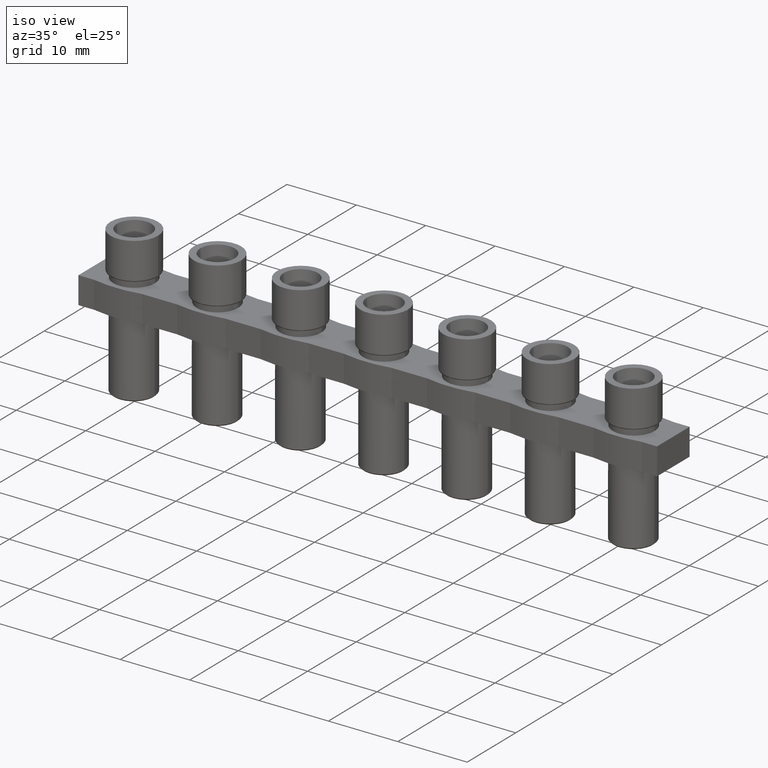
[diagram: clean part render]
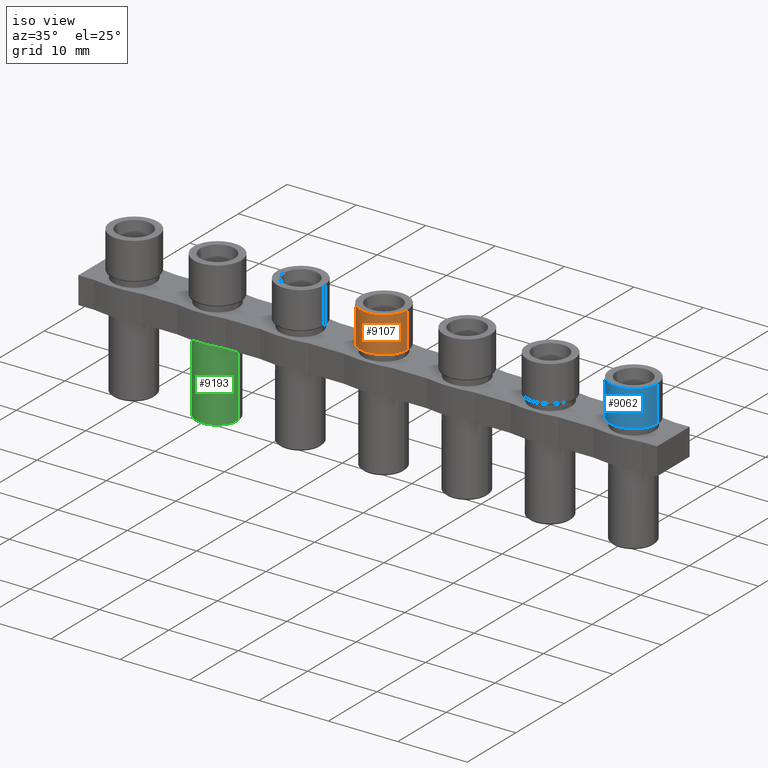
[diagram: same view with three faces highlighted in distinct colors, each labeled with its STEP entity id]
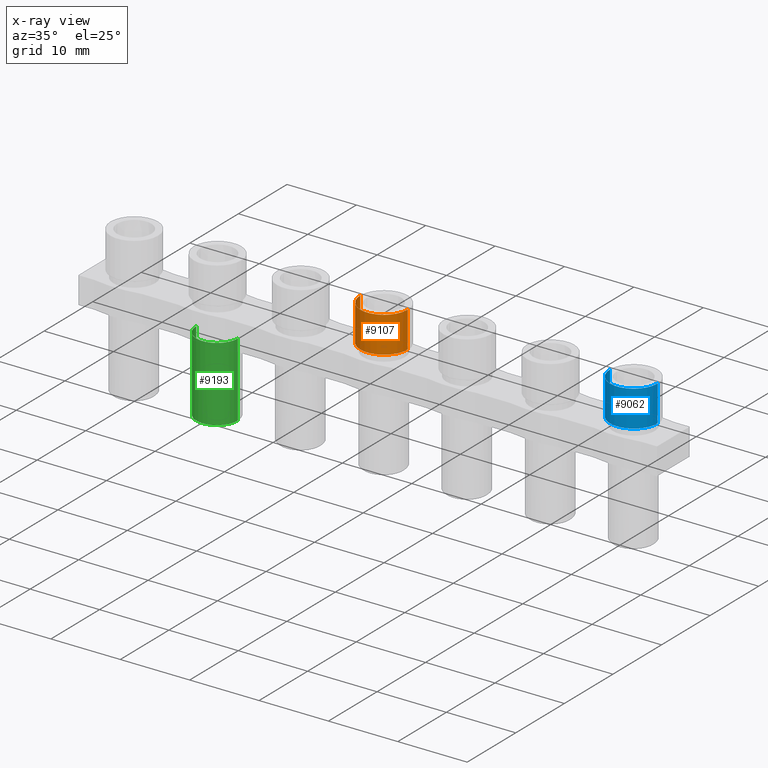
[diagram: x-ray of the same camera — body ghosted, the three highlighted faces saturated]
A machine part, iso view with three faces highlighted in distinct colors.
The next image is the same camera in x-ray (body ghosted, the three faces saturated) — at least one of them is partly hidden behind the body in this view.
Their STEP definitions:

[orange] entity #9107 — the highlighted cylindrical surface (edge-blend (fillet) strip) has radius 3.425 mm, axis along (-0, -0, -1).
#1437 = EDGE_LOOP ( 'NONE', ( #4320, #4340, #4324, #4323 ) ) ;
#2931 = DIRECTION ( 'NONE',  ( -0.0000000000000000000, -0.0000000000000000000, -1.000000000000000000 ) ) ;
#2956 = CARTESIAN_POINT ( 'NONE',  ( -24.00000000000000000, -4.578582932987532800E-015, 5.400000000000000400 ) ) ;
#2959 = DIRECTION ( 'NONE',  ( -1.000000000000000000, 0.0000000000000000000, 0.0000000000000000000 ) ) ;
#3479 = VECTOR ( 'NONE', #7275, 1000.000000000000000 ) ;
#3499 = VECTOR ( 'NONE', #7392, 1000.000000000000000 ) ;
#3937 = AXIS2_PLACEMENT_3D ( 'NONE', #2956, #2931, #2959 ) ;
#3939 = CIRCLE ( 'NONE', #3937, 3.424999999999997600 ) ;
#4320 = ORIENTED_EDGE ( 'NONE', *, *, #8378, .F. ) ;
#4323 = ORIENTED_EDGE ( 'NONE', *, *, #9338, .F. ) ;
#4324 = ORIENTED_EDGE ( 'NONE', *, *, #8408, .T. ) ;
#4340 = ORIENTED_EDGE ( 'NONE', *, *, #8724, .T. ) ;
#5084 = CARTESIAN_POINT ( 'NONE',  ( -20.57500000000000300, -4.159141404279564600E-015, 0.1999999999999996500 ) ) ;
#5116 = CARTESIAN_POINT ( 'NONE',  ( -27.42499999999999700, -4.578582932987532800E-015, 0.1999999999999996500 ) ) ;
#5258 = CARTESIAN_POINT ( 'NONE',  ( -20.57500000000000300, -4.159141404279564600E-015, 5.400000000000000400 ) ) ;
#5293 = CARTESIAN_POINT ( 'NONE',  ( -27.42499999999999700, -4.578582932987532800E-015, 5.400000000000000400 ) ) ;
#6802 = VERTEX_POINT ( 'NONE', #5084 ) ;
#6822 = VERTEX_POINT ( 'NONE', #5116 ) ;
#6982 = VERTEX_POINT ( 'NONE', #5258 ) ;
#7001 = VERTEX_POINT ( 'NONE', #5293 ) ;
#7263 = CARTESIAN_POINT ( 'NONE',  ( -20.57500000000000300, -4.159141404279564600E-015, 5.400000000000000400 ) ) ;
#7272 = LINE ( 'NONE', #7263, #3479 ) ;
#7275 = DIRECTION ( 'NONE',  ( -0.0000000000000000000, -0.0000000000000000000, -1.000000000000000000 ) ) ;
#7392 = DIRECTION ( 'NONE',  ( -0.0000000000000000000, -0.0000000000000000000, -1.000000000000000000 ) ) ;
#7405 = LINE ( 'NONE', #7417, #3499 ) ;
#7417 = CARTESIAN_POINT ( 'NONE',  ( -27.42499999999999700, -4.578582932987532800E-015, 5.400000000000000400 ) ) ;
#7571 = AXIS2_PLACEMENT_3D ( 'NONE', #10221, #10226, #10228 ) ;
#7962 = AXIS2_PLACEMENT_3D ( 'NONE', #9557, #9539, #9550 ) ;
#7975 = CIRCLE ( 'NONE', #7962, 3.424999999999997600 ) ;
#8378 = EDGE_CURVE ( 'NONE', #6982, #6802, #7272, .T. ) ;
#8408 = EDGE_CURVE ( 'NONE', #7001, #6822, #7405, .T. ) ;
#8724 = EDGE_CURVE ( 'NONE', #6982, #7001, #3939, .T. ) ;
#9107 = ADVANCED_FACE ( 'NONE', ( #10227 ), #10220, .T. ) ;
#9338 = EDGE_CURVE ( 'NONE', #6802, #6822, #7975, .T. ) ;
#9539 = DIRECTION ( 'NONE',  ( -0.0000000000000000000, -0.0000000000000000000, -1.000000000000000000 ) ) ;
#9550 = DIRECTION ( 'NONE',  ( 1.000000000000000000, 0.0000000000000000000, 0.0000000000000000000 ) ) ;
#9557 = CARTESIAN_POINT ( 'NONE',  ( -24.00000000000000000, -4.578582932987532800E-015, 0.1999999999999996500 ) ) ;
#10220 = CYLINDRICAL_SURFACE ( 'NONE', #7571, 3.424999999999997600 ) ;
#10221 = CARTESIAN_POINT ( 'NONE',  ( -24.00000000000000000, -4.578582932987532800E-015, 5.400000000000000400 ) ) ;
#10226 = DIRECTION ( 'NONE',  ( -0.0000000000000000000, -0.0000000000000000000, -1.000000000000000000 ) ) ;
#10227 = FACE_OUTER_BOUND ( 'NONE', #1437, .T. ) ;
#10228 = DIRECTION ( 'NONE',  ( -1.000000000000000000, 0.0000000000000000000, 0.0000000000000000000 ) ) ;

[blue] entity #9062 — the highlighted cylindrical surface (edge-blend (fillet) strip) has radius 3.425 mm, axis along (-0, -0, -1).
#1364 = EDGE_LOOP ( 'NONE', ( #2146, #2196, #2173, #2191 ) ) ;
#2146 = ORIENTED_EDGE ( 'NONE', *, *, #8571, .F. ) ;
#2173 = ORIENTED_EDGE ( 'NONE', *, *, #8504, .T. ) ;
#2191 = ORIENTED_EDGE ( 'NONE', *, *, #9345, .F. ) ;
#2196 = ORIENTED_EDGE ( 'NONE', *, *, #8689, .T. ) ;
#2288 = VERTEX_POINT ( 'NONE', #4982 ) ;
#2394 = CARTESIAN_POINT ( 'NONE',  ( 15.42499999999999700, 1.885405029533116300E-015, 5.400000000000000400 ) ) ;
#2398 = DIRECTION ( 'NONE',  ( -0.0000000000000000000, -0.0000000000000000000, -1.000000000000000000 ) ) ;
#2409 = LINE ( 'NONE', #2394, #3745 ) ;
#2801 = CARTESIAN_POINT ( 'NONE',  ( 12.00000000000000000, 1.465963500825148300E-015, 5.400000000000000400 ) ) ;
#2824 = DIRECTION ( 'NONE',  ( -1.000000000000000000, 0.0000000000000000000, 0.0000000000000000000 ) ) ;
#2829 = DIRECTION ( 'NONE',  ( -0.0000000000000000000, -0.0000000000000000000, -1.000000000000000000 ) ) ;
#3650 = VECTOR ( 'NONE', #8010, 1000.000000000000000 ) ;
#3745 = VECTOR ( 'NONE', #2398, 1000.000000000000000 ) ;
#3903 = CIRCLE ( 'NONE', #3921, 3.424999999999997600 ) ;
#3921 = AXIS2_PLACEMENT_3D ( 'NONE', #2801, #2829, #2824 ) ;
#4982 = CARTESIAN_POINT ( 'NONE',  ( 15.42499999999999700, 1.885405029533116300E-015, 5.400000000000000400 ) ) ;
#5180 = CARTESIAN_POINT ( 'NONE',  ( 15.42499999999999900, 1.885405029533116300E-015, 0.1999999999999996500 ) ) ;
#5191 = CARTESIAN_POINT ( 'NONE',  ( 8.575000000000001100, 1.465963500825148300E-015, 0.1999999999999996500 ) ) ;
#5255 = CARTESIAN_POINT ( 'NONE',  ( 8.575000000000002800, 1.465963500825148300E-015, 5.400000000000000400 ) ) ;
#6851 = VERTEX_POINT ( 'NONE', #5180 ) ;
#6878 = VERTEX_POINT ( 'NONE', #5191 ) ;
#6983 = VERTEX_POINT ( 'NONE', #5255 ) ;
#7492 = AXIS2_PLACEMENT_3D ( 'NONE', #10053, #10038, #10017 ) ;
#7914 = CIRCLE ( 'NONE', #7937, 3.424999999999999400 ) ;
#7937 = AXIS2_PLACEMENT_3D ( 'NONE', #9573, #9576, #9574 ) ;
#8004 = LINE ( 'NONE', #8041, #3650 ) ;
#8010 = DIRECTION ( 'NONE',  ( -0.0000000000000000000, -0.0000000000000000000, -1.000000000000000000 ) ) ;
#8041 = CARTESIAN_POINT ( 'NONE',  ( 8.575000000000002800, 1.465963500825148300E-015, 5.400000000000000400 ) ) ;
#8504 = EDGE_CURVE ( 'NONE', #6983, #6878, #8004, .T. ) ;
#8571 = EDGE_CURVE ( 'NONE', #2288, #6851, #2409, .T. ) ;
#8689 = EDGE_CURVE ( 'NONE', #2288, #6983, #3903, .T. ) ;
#9062 = ADVANCED_FACE ( 'NONE', ( #10057 ), #10050, .T. ) ;
#9345 = EDGE_CURVE ( 'NONE', #6851, #6878, #7914, .T. ) ;
#9573 = CARTESIAN_POINT ( 'NONE',  ( 12.00000000000000000, 1.465963500825148300E-015, 0.1999999999999996500 ) ) ;
#9574 = DIRECTION ( 'NONE',  ( 1.000000000000000000, 0.0000000000000000000, 0.0000000000000000000 ) ) ;
#9576 = DIRECTION ( 'NONE',  ( -0.0000000000000000000, -0.0000000000000000000, -1.000000000000000000 ) ) ;
#10017 = DIRECTION ( 'NONE',  ( -1.000000000000000000, 0.0000000000000000000, 0.0000000000000000000 ) ) ;
#10038 = DIRECTION ( 'NONE',  ( -0.0000000000000000000, -0.0000000000000000000, -1.000000000000000000 ) ) ;
#10050 = CYLINDRICAL_SURFACE ( 'NONE', #7492, 3.424999999999997600 ) ;
#10053 = CARTESIAN_POINT ( 'NONE',  ( 12.00000000000000000, 1.465963500825148300E-015, 5.400000000000000400 ) ) ;
#10057 = FACE_OUTER_BOUND ( 'NONE', #1364, .T. ) ;

[green] entity #9193 — the highlighted cylindrical surface (edge-blend (fillet) strip) has radius 3 mm, axis along (-0, -0, -1).
#759 = CARTESIAN_POINT ( 'NONE',  ( -48.06167760658912900, -9.157165865975065600E-015, -4.900000000077398000 ) ) ;
#760 = DIRECTION ( 'NONE',  ( -0.0000000000000000000, -0.0000000000000000000, 1.000000000000000000 ) ) ;
#762 = DIRECTION ( 'NONE',  ( -1.000000000000000000, 0.0000000000000000000, 0.0000000000000000000 ) ) ;
#1501 = EDGE_LOOP ( 'NONE', ( #4587, #4591, #4623, #4608, #4634 ) ) ;
#3180 = DIRECTION ( 'NONE',  ( 0.0000000000000000000, 0.0000000000000000000, 1.000000000000000000 ) ) ;
#3183 = DIRECTION ( 'NONE',  ( -1.000000000000000000, 0.0000000000000000000, 0.0000000000000000000 ) ) ;
#3195 = CARTESIAN_POINT ( 'NONE',  ( -48.06167760658912900, -9.157165865975065600E-015, -15.60000000008048600 ) ) ;
#3295 = VECTOR ( 'NONE', #5323, 1000.000000000000000 ) ;
#3312 = VECTOR ( 'NONE', #5362, 1000.000000000000000 ) ;
#3382 = AXIS2_PLACEMENT_3D ( 'NONE', #7061, #7084, #7095 ) ;
#3389 = CIRCLE ( 'NONE', #3382, 2.999999999999995600 ) ;
#3982 = CIRCLE ( 'NONE', #4005, 2.999999999999995600 ) ;
#4005 = AXIS2_PLACEMENT_3D ( 'NONE', #3195, #3180, #3183 ) ;
#4154 = CIRCLE ( 'NONE', #4155, 2.999999999992141000 ) ;
#4155 = AXIS2_PLACEMENT_3D ( 'NONE', #759, #760, #762 ) ;
#4587 = ORIENTED_EDGE ( 'NONE', *, *, #8253, .F. ) ;
#4591 = ORIENTED_EDGE ( 'NONE', *, *, #8936, .F. ) ;
#4608 = ORIENTED_EDGE ( 'NONE', *, *, #8784, .T. ) ;
#4623 = ORIENTED_EDGE ( 'NONE', *, *, #8267, .T. ) ;
#4634 = ORIENTED_EDGE ( 'NONE', *, *, #8315, .T. ) ;
#5149 = CARTESIAN_POINT ( 'NONE',  ( -45.06167760658913600, -8.789771826230860200E-015, -15.60000000008048600 ) ) ;
#5150 = CARTESIAN_POINT ( 'NONE',  ( -51.06167760658127000, -9.157165865975065600E-015, -4.900000000077398000 ) ) ;
#5161 = CARTESIAN_POINT ( 'NONE',  ( -51.06167760658912900, -9.157165865975065600E-015, -15.60000000008048600 ) ) ;
#5192 = CARTESIAN_POINT ( 'NONE',  ( -45.06167760659698700, -8.789771826231341400E-015, -4.900000000077398000 ) ) ;
#5204 = CARTESIAN_POINT ( 'NONE',  ( -48.06167760658912900, -2.999999999911700400, -15.60000000008048600 ) ) ;
#5319 = LINE ( 'NONE', #5347, #3295 ) ;
#5323 = DIRECTION ( 'NONE',  ( -0.0000000000000000000, -0.0000000000000000000, -1.000000000000000000 ) ) ;
#5347 = CARTESIAN_POINT ( 'NONE',  ( -45.06167760658913600, -8.789771826230860200E-015, -4.800000000080492800 ) ) ;
#5362 = DIRECTION ( 'NONE',  ( -0.0000000000000000000, -0.0000000000000000000, -1.000000000000000000 ) ) ;
#5385 = CARTESIAN_POINT ( 'NONE',  ( -51.06167760658912900, -9.157165865975065600E-015, -4.800000000080492800 ) ) ;
#5391 = LINE ( 'NONE', #5385, #3312 ) ;
#6175 = CARTESIAN_POINT ( 'NONE',  ( -48.06167760658912900, -9.157165865975065600E-015, -4.800000000080492800 ) ) ;
#6182 = CYLINDRICAL_SURFACE ( 'NONE', #7710, 2.999999999999995600 ) ;
#6183 = FACE_OUTER_BOUND ( 'NONE', #1501, .T. ) ;
#6198 = DIRECTION ( 'NONE',  ( -0.0000000000000000000, -0.0000000000000000000, -1.000000000000000000 ) ) ;
#6217 = DIRECTION ( 'NONE',  ( -1.000000000000000000, 0.0000000000000000000, 0.0000000000000000000 ) ) ;
#6882 = VERTEX_POINT ( 'NONE', #5149 ) ;
#6886 = VERTEX_POINT ( 'NONE', #5192 ) ;
#6889 = VERTEX_POINT ( 'NONE', #5161 ) ;
#6894 = VERTEX_POINT ( 'NONE', #5150 ) ;
#6922 = VERTEX_POINT ( 'NONE', #5204 ) ;
#7061 = CARTESIAN_POINT ( 'NONE',  ( -48.06167760658912900, -9.157165865975065600E-015, -15.60000000008048600 ) ) ;
#7084 = DIRECTION ( 'NONE',  ( 0.0000000000000000000, 0.0000000000000000000, 1.000000000000000000 ) ) ;
#7095 = DIRECTION ( 'NONE',  ( -1.000000000000000000, 0.0000000000000000000, 0.0000000000000000000 ) ) ;
#7710 = AXIS2_PLACEMENT_3D ( 'NONE', #6175, #6198, #6217 ) ;
#8253 = EDGE_CURVE ( 'NONE', #6886, #6882, #5319, .T. ) ;
#8267 = EDGE_CURVE ( 'NONE', #6894, #6889, #5391, .T. ) ;
#8315 = EDGE_CURVE ( 'NONE', #6922, #6882, #3389, .T. ) ;
#8784 = EDGE_CURVE ( 'NONE', #6889, #6922, #3982, .T. ) ;
#8936 = EDGE_CURVE ( 'NONE', #6894, #6886, #4154, .T. ) ;
#9193 = ADVANCED_FACE ( 'NONE', ( #6183 ), #6182, .T. ) ;